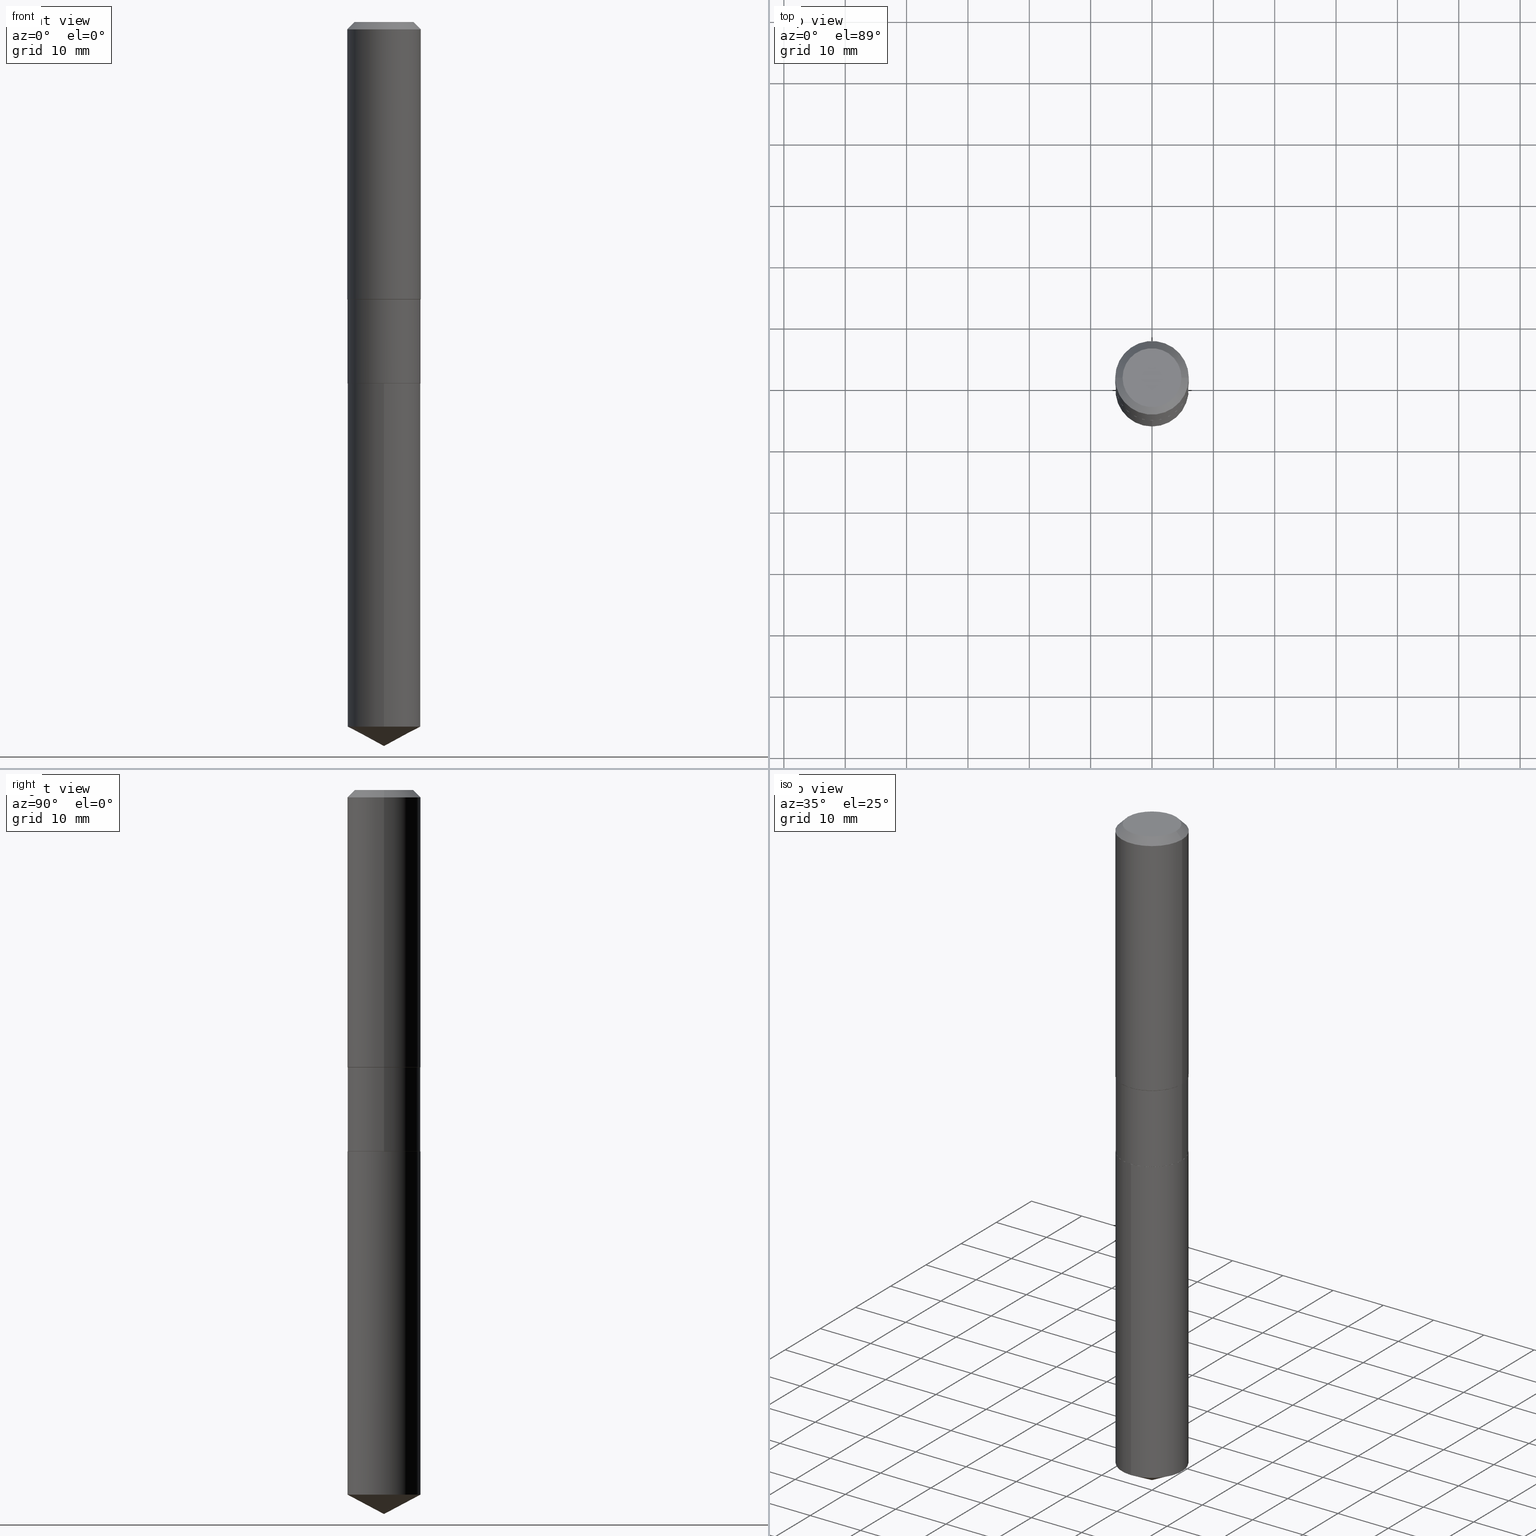
[diagram: canonical four-view strip — front | top / right | iso, engineering-drawing reading convention]
A machine part, canonical four-view strip (front | top / right | iso — engineering-drawing reading convention). The complete STEP part file that produces these views, byte-faithful:
ISO-10303-21;
HEADER;
FILE_DESCRIPTION (( 'STEP AP203' ),
    '1' );
FILE_NAME ('55186.STEP',
    '2024-04-24T17:01:12',
    ( '' ),
    ( '' ),
    'SwSTEP 2.0',
    'SolidWorks 2023',
    '' );
FILE_SCHEMA (( 'CONFIG_CONTROL_DESIGN' ));
ENDSEC;

DATA;
#1 = DIRECTION ( 'NONE',  ( -1.000000000000000000, 6.982962677686265922E-15, -4.876176775795935793E-29 ) ) ;
#2 = MANIFOLD_SOLID_BREP ( 'Body-Move/Copy2[2]', #116 ) ;
#3 = EDGE_LOOP ( 'NONE', ( #409, #185, #320, #382 ) ) ;
#4 = COORDINATED_UNIVERSAL_TIME_OFFSET ( 5, 0, .BEHIND. ) ;
#5 = EDGE_CURVE ( 'NONE', #34, #307, #400, .T. ) ;
#6 = SECURITY_CLASSIFICATION_LEVEL ( 'unclassified' ) ;
#7 = CARTESIAN_POINT ( 'NONE',  ( 0.2343999999999999695, -1.636806451649660713E-15, 1.142975836246567155E-29 ) ) ;
#8 = ADVANCED_FACE ( 'NONE', ( #80 ), #460, .T. ) ;
#9 = FACE_OUTER_BOUND ( 'NONE', #45, .T. ) ;
#10 = APPROVAL_ROLE ( '' ) ;
#11 = CC_DESIGN_DATE_AND_TIME_ASSIGNMENT ( #273, #308, ( #14 ) ) ;
#12 = CARTESIAN_POINT ( 'NONE',  ( 1.136096957072411400E-28, -1.622239395491006492E-14, -4.645999999999999908 ) ) ;
#13 = AXIS2_PLACEMENT_3D ( 'NONE', #397, #129, #200 ) ;
#14 = SECURITY_CLASSIFICATION ( '', '', #6 ) ;
#15 = DATE_AND_TIME ( #406, #454 ) ;
#16 = CARTESIAN_POINT ( 'NONE',  ( -0.2362000000000001043, 1.678301941865357380E-15, -1.161852468318209317E-29 ) ) ;
#17 = EDGE_CURVE ( 'NONE', #152, #365, #393, .T. ) ;
#18 = CALENDAR_DATE ( 2024, 24, 4 ) ;
#19 = CARTESIAN_POINT ( 'NONE',  ( -0.2343999999999999417, -5.492024572006774200E-15, -1.780699999999999950 ) ) ;
#20 = CARTESIAN_POINT ( 'NONE',  ( -9.427742298522546243E-47, 1.346031739168365344E-32, 3.855188123715862256E-18 ) ) ;
#21 = VERTEX_POINT ( 'NONE', #251 ) ;
#22 = DIRECTION ( 'NONE',  ( 1.000000000000000000, -6.982962677686266711E-15, 0.000000000000000000 ) ) ;
#23 = AXIS2_PLACEMENT_3D ( 'NONE', #101, #204, #469 ) ;
#24 = EDGE_LOOP ( 'NONE', ( #254, #190, #226, #363 ) ) ;
#25 = CLOSED_SHELL ( 'NONE', ( #416, #366, #234, #119, #183 ) ) ;
#26 = LOCAL_TIME ( 13, 1, 12.00000000000000000, #4 ) ;
#27 = EDGE_CURVE ( 'NONE', #102, #387, #35, .T. ) ;
#28 = DIRECTION ( 'NONE',  ( -2.445468806185136597E-29, 3.491481338843145583E-15, 1.000000000000000000 ) ) ;
#29 = ORIENTED_EDGE ( 'NONE', *, *, #90, .F. ) ;
#30 = DIRECTION ( 'NONE',  ( -6.982962677686264344E-15, -1.000000000000000000, 3.541896320645547064E-15 ) ) ;
#31 = EDGE_CURVE ( 'NONE', #113, #98, #339, .T. ) ;
#32 = VERTEX_POINT ( 'NONE', #141 ) ;
#33 = LINE ( 'NONE', #384, #233 ) ;
#34 = VERTEX_POINT ( 'NONE', #285 ) ;
#35 = CIRCLE ( 'NONE', #237, 0.2343999999999999972 ) ;
#36 = CONICAL_SURFACE ( 'NONE', #272, 0.2361999999999999933, 0.7853981633974452814 ) ;
#37 = DIRECTION ( 'NONE',  ( 1.000000000000000000, -6.982962677686266711E-15, 0.000000000000000000 ) ) ;
#38 = FACE_OUTER_BOUND ( 'NONE', #3, .T. ) ;
#39 = LINE ( 'NONE', #420, #304 ) ;
#40 = AXIS2_PLACEMENT_3D ( 'NONE', #309, #122, #268 ) ;
#41 = FACE_OUTER_BOUND ( 'NONE', #222, .T. ) ;
#42 = CIRCLE ( 'NONE', #248, 0.2343999999999999417 ) ;
#43 = EDGE_CURVE ( 'NONE', #21, #286, #264, .T. ) ;
#44 = CARTESIAN_POINT ( 'NONE',  ( -0.2338999999999999968, -6.437578950905456290E-15, -2.319800000000000306 ) ) ;
#45 = EDGE_LOOP ( 'NONE', ( #480, #294, #458, #462 ) ) ;
#46 = DIRECTION ( 'NONE',  ( -2.445468806185136597E-29, 3.491481338843145583E-15, 1.000000000000000000 ) ) ;
#47 = VECTOR ( 'NONE', #442, 39.37007874015748143 ) ;
#48 = DIRECTION ( 'NONE',  ( -0.7071067811865453523, 2.468850131082234184E-15, -0.7071067811865496822 ) ) ;
#49 = EDGE_CURVE ( 'NONE', #369, #259, #419, .T. ) ;
#50 = FACE_OUTER_BOUND ( 'NONE', #448, .T. ) ;
#51 = DIRECTION ( 'NONE',  ( 1.000000000000000000, 0.000000000000000000, 0.000000000000000000 ) ) ;
#52 = PRODUCT_DEFINITION ( 'UNKNOWN', '', #447, #196 ) ;
#53 = CARTESIAN_POINT ( 'NONE',  ( 4.354646303173872369E-29, -6.217280820077988934E-15, -1.780699999999999950 ) ) ;
#54 = COORDINATED_UNIVERSAL_TIME_OFFSET ( 5, 0, .BEHIND. ) ;
#55 = DIRECTION ( 'NONE',  ( -2.445322765975917676E-29, 3.491690476734839689E-15, 1.000000000000000000 ) ) ;
#56 = EDGE_CURVE ( 'NONE', #286, #32, #203, .T. ) ;
#57 = AXIS2_PLACEMENT_3D ( 'NONE', #156, #300, #295 ) ;
#58 = COORDINATED_UNIVERSAL_TIME_OFFSET ( 5, 0, .BEHIND. ) ;
#59 = DIRECTION ( 'NONE',  ( -2.445468806185136597E-29, 3.491481338843145583E-15, 1.000000000000000000 ) ) ;
#60 = CC_DESIGN_PERSON_AND_ORGANIZATION_ASSIGNMENT ( #399, #468, ( #447 ) ) ;
#61 = DATE_TIME_ROLE ( 'creation_date' ) ;
#62 = LINE ( 'NONE', #136, #425 ) ;
#63 = ORIENTED_EDGE ( 'NONE', *, *, #479, .F. ) ;
#64 = DIRECTION ( 'NONE',  ( -2.445468806185136597E-29, 3.491481338843145583E-15, 1.000000000000000000 ) ) ;
#65 = VECTOR ( 'NONE', #464, 39.37007874015748143 ) ;
#66 = ORIENTED_EDGE ( 'NONE', *, *, #56, .F. ) ;
#67 = CARTESIAN_POINT ( 'NONE',  ( 0.2338999999999999968, -9.732853380159146928E-15, -2.319800000000000306 ) ) ;
#68 = DIRECTION ( 'NONE',  ( -6.982962677686265922E-15, -1.000000000000000000, 3.496392483358698711E-15 ) ) ;
#69 = ORIENTED_EDGE ( 'NONE', *, *, #164, .F. ) ;
#70 = DIRECTION ( 'NONE',  ( -2.445468806185136597E-29, 3.491481338843145583E-15, 1.000000000000000000 ) ) ;
#71 = ORIENTED_EDGE ( 'NONE', *, *, #297, .F. ) ;
#72 = CYLINDRICAL_SURFACE ( 'NONE', #376, 0.2362000000000001043 ) ;
#73 = CIRCLE ( 'NONE', #484, 0.2362000000000002153 ) ;
#74 = AXIS2_PLACEMENT_3D ( 'NONE', #134, #199, #51 ) ;
#75 = DIRECTION ( 'NONE',  ( 1.000000000000000000, -6.982962677686266711E-15, 4.876176775795935793E-29 ) ) ;
#76 = ORIENTED_EDGE ( 'NONE', *, *, #5, .F. ) ;
#77 = DIRECTION ( 'NONE',  ( -2.445468806185136597E-29, 3.491481338843145583E-15, 1.000000000000000000 ) ) ;
#78 = EDGE_CURVE ( 'NONE', #369, #21, #235, .T. ) ;
#79 = DIRECTION ( 'NONE',  ( -2.445468806185136877E-29, 3.491481338843145188E-15, 1.000000000000000000 ) ) ;
#80 = FACE_OUTER_BOUND ( 'NONE', #143, .T. ) ;
#81 = CIRCLE ( 'NONE', #258, 0.1889600000000000168 ) ;
#82 = AXIS2_PLACEMENT_3D ( 'NONE', #452, #487, #148 ) ;
#83 = ORIENTED_EDGE ( 'NONE', *, *, #17, .F. ) ;
#84 = DIRECTION ( 'NONE',  ( -2.445322765975917676E-29, 3.491690476734839689E-15, 1.000000000000000000 ) ) ;
#85 =( GEOMETRIC_REPRESENTATION_CONTEXT ( 3 ) GLOBAL_UNCERTAINTY_ASSIGNED_CONTEXT ( ( #344 ) ) GLOBAL_UNIT_ASSIGNED_CONTEXT ( ( #92, #174, #470 ) ) REPRESENTATION_CONTEXT ( 'NONE', 'WORKASPACE' ) );
#86 = CARTESIAN_POINT ( 'NONE',  ( -0.1889600000000000168, 1.401969416799070942E-15, 3.855188123706346622E-18 ) ) ;
#87 = VECTOR ( 'NONE', #79, 39.37007874015748143 ) ;
#88 = DATE_AND_TIME ( #163, #216 ) ;
#89 = MECHANICAL_CONTEXT ( 'NONE', #465, 'mechanical' ) ;
#90 = EDGE_CURVE ( 'NONE', #259, #369, #475, .T. ) ;
#91 = LINE ( 'NONE', #476, #438 ) ;
#92 =( CONVERSION_BASED_UNIT ( 'INCH', #138 ) LENGTH_UNIT ( ) NAMED_UNIT ( #429 ) );
#93 = ADVANCED_FACE ( 'NONE', ( #9 ), #130, .T. ) ;
#94 = CARTESIAN_POINT ( 'NONE',  ( 3.781018395113229375E-29, -1.080896165726276243E-14, -2.319800000000000306 ) ) ;
#95 = AXIS2_PLACEMENT_3D ( 'NONE', #328, #207, #364 ) ;
#96 = DIRECTION ( 'NONE',  ( -2.445468806185136597E-29, 3.491481338843145583E-15, 1.000000000000000000 ) ) ;
#97 = VECTOR ( 'NONE', #221, 39.37007874015748143 ) ;
#98 = VERTEX_POINT ( 'NONE', #86 ) ;
#99 = APPROVAL_DATE_TIME ( #313, #301 ) ;
#100 = CARTESIAN_POINT ( 'NONE',  ( 1.105654119864874407E-28, -1.578673001733748720E-14, -4.521367309218550901 ) ) ;
#101 = CARTESIAN_POINT ( 'NONE',  ( 5.671775802185187790E-29, -8.097792669178907520E-15, -2.319300000000000139 ) ) ;
#102 = VERTEX_POINT ( 'NONE', #274 ) ;
#103 = FACE_OUTER_BOUND ( 'NONE', #177, .T. ) ;
#104 = EDGE_CURVE ( 'NONE', #324, #32, #232, .T. ) ;
#105 = ORIENTED_EDGE ( 'NONE', *, *, #210, .T. ) ;
#106 = DIRECTION ( 'NONE',  ( -2.438088387897960049E-29, 3.491481338843145188E-15, 1.000000000000000000 ) ) ;
#107 = AXIS2_PLACEMENT_3D ( 'NONE', #278, #410, #30 ) ;
#108 = ORIENTED_EDGE ( 'NONE', *, *, #43, .F. ) ;
#109 = CC_DESIGN_PERSON_AND_ORGANIZATION_ASSIGNMENT ( #208, #360, ( #14 ) ) ;
#110 = AXIS2_PLACEMENT_3D ( 'NONE', #444, #55, #325 ) ;
#111 = ORIENTED_EDGE ( 'NONE', *, *, #198, .T. ) ;
#112 = FACE_OUTER_BOUND ( 'NONE', #388, .T. ) ;
#113 = VERTEX_POINT ( 'NONE', #205 ) ;
#114 = DIRECTION ( 'NONE',  ( -2.445468806185136597E-29, 3.491481338843145583E-15, 1.000000000000000000 ) ) ;
#115 = ORIENTED_EDGE ( 'NONE', *, *, #78, .F. ) ;
#116 = CLOSED_SHELL ( 'NONE', ( #338, #326, #201, #241, #8, #408, #93, #380, #269, #396, #306, #455 ) ) ;
#117 = APPROVAL_PERSON_ORGANIZATION ( #317, #301, #10 ) ;
#118 = PLANE ( 'NONE',  #311 ) ;
#119 = ADVANCED_FACE ( 'NONE', ( #50 ), #428, .T. ) ;
#120 = ORIENTED_EDGE ( 'NONE', *, *, #31, .F. ) ;
#121 = DIRECTION ( 'NONE',  ( -2.445322765975917676E-29, 3.491690476734839689E-15, 1.000000000000000000 ) ) ;
#122 = DIRECTION ( 'NONE',  ( -2.445322765975917676E-29, 3.491690476734839689E-15, 1.000000000000000000 ) ) ;
#123 = APPROVAL_STATUS ( 'not_yet_approved' ) ;
#124 = ORIENTED_EDGE ( 'NONE', *, *, #133, .F. ) ;
#125 = PERSON_AND_ORGANIZATION ( #296, #170 ) ;
#126 = AXIS2_PLACEMENT_3D ( 'NONE', #188, #77, #37 ) ;
#127 = DIRECTION ( 'NONE',  ( -2.445468806185136597E-29, 3.491481338843145583E-15, 1.000000000000000000 ) ) ;
#128 = CARTESIAN_POINT ( 'NONE',  ( 5.672998536588279470E-29, -8.099538409848329813E-15, -2.319799999999999862 ) ) ;
#129 = DIRECTION ( 'NONE',  ( -2.445468806185136597E-29, 3.491481338843145583E-15, 1.000000000000000000 ) ) ;
#130 = CONICAL_SURFACE ( 'NONE', #13, 0.2343999999999999417, 0.7853981633974578269 ) ;
#131 = CC_DESIGN_APPROVAL ( #229, ( #14 ) ) ;
#132 = DIRECTION ( 'NONE',  ( 1.000000000000000000, -6.982962677686263555E-15, 0.000000000000000000 ) ) ;
#133 = EDGE_CURVE ( 'NONE', #159, #307, #351, .T. ) ;
#134 = CARTESIAN_POINT ( 'NONE',  ( 0.000000000000000000, 0.000000000000000000, 0.000000000000000000 ) ) ;
#135 = APPLICATION_PROTOCOL_DEFINITION ( 'international standard', 'config_control_design', 1994, #336 ) ;
#136 = CARTESIAN_POINT ( 'NONE',  ( -1.636806451649603915E-15, -0.2344000000000081019, -2.319799999999998974 ) ) ;
#137 = ORIENTED_EDGE ( 'NONE', *, *, #17, .T. ) ;
#138 = LENGTH_MEASURE_WITH_UNIT ( LENGTH_MEASURE( 0.02539999999999999897 ), #260 );
#139 = DIRECTION ( 'NONE',  ( -1.000000000000000000, 6.982962677686266711E-15, 0.000000000000000000 ) ) ;
#140 = AXIS2_PLACEMENT_3D ( 'NONE', #213, #59, #22 ) ;
#141 = CARTESIAN_POINT ( 'NONE',  ( 0.2343999999999999417, -7.854087271727649845E-15, -1.780699999999999950 ) ) ;
#142 = CC_DESIGN_SECURITY_CLASSIFICATION ( #14, ( #447 ) ) ;
#143 = EDGE_LOOP ( 'NONE', ( #111, #379, #303, #66 ) ) ;
#144 = CARTESIAN_POINT ( 'NONE',  ( 0.2343999999999999972, -9.734599120828569220E-15, -2.319300000000000139 ) ) ;
#145 = ORIENTED_EDGE ( 'NONE', *, *, #133, .T. ) ;
#146 = PLANE ( 'NONE',  #340 ) ;
#147 = ORIENTED_EDGE ( 'NONE', *, *, #49, .T. ) ;
#148 = DIRECTION ( 'NONE',  ( -6.982962677686265922E-15, -1.000000000000000000, 3.496392483358698711E-15 ) ) ;
#149 = AXIS2_PLACEMENT_3D ( 'NONE', #100, #255, #209 ) ;
#150 = ORIENTED_EDGE ( 'NONE', *, *, #440, .T. ) ;
#151 = CARTESIAN_POINT ( 'NONE',  ( 0.000000000000000000, 0.000000000000000000, 0.000000000000000000 ) ) ;
#152 = VERTEX_POINT ( 'NONE', #466 ) ;
#153 = APPROVAL ( #389, 'UNSPECIFIED' ) ;
#154 = CARTESIAN_POINT ( 'NONE',  ( 0.2338999999999999968, -9.732853380159146928E-15, -2.319800000000000306 ) ) ;
#155 = ORIENTED_EDGE ( 'NONE', *, *, #280, .F. ) ;
#156 = CARTESIAN_POINT ( 'NONE',  ( 0.000000000000000000, 0.000000000000000000, 0.000000000000000000 ) ) ;
#157 = AXIS2_PLACEMENT_3D ( 'NONE', #245, #64, #481 ) ;
#158 = DIRECTION ( 'NONE',  ( -0.7071067811865541231, 7.493145998870377826E-15, 0.7071067811865406894 ) ) ;
#159 = VERTEX_POINT ( 'NONE', #277 ) ;
#160 = CALENDAR_DATE ( 2024, 24, 4 ) ;
#161 = MANIFOLD_SOLID_BREP ( 'Body-Move/Copy2[1]', #25 ) ;
#162 = EDGE_LOOP ( 'NONE', ( #187, #373, #83, #63 ) ) ;
#163 = CALENDAR_DATE ( 2024, 24, 4 ) ;
#164 = EDGE_CURVE ( 'NONE', #98, #113, #81, .T. ) ;
#165 = AXIS2_PLACEMENT_3D ( 'NONE', #407, #179, #215 ) ;
#166 = AXIS2_PLACEMENT_3D ( 'NONE', #197, #70, #342 ) ;
#167 = DIRECTION ( 'NONE',  ( -2.445468806185136597E-29, 3.491481338843145583E-15, 1.000000000000000000 ) ) ;
#168 = EDGE_CURVE ( 'NONE', #98, #365, #275, .T. ) ;
#169 = SHAPE_DEFINITION_REPRESENTATION ( #472, #404 ) ;
#170 = ORGANIZATION ( 'UNSPECIFIED', 'UNSPECIFIED', '' ) ;
#171 = CARTESIAN_POINT ( 'NONE',  ( 5.672998536588280591E-29, -8.099538409848329813E-15, -2.319800000000000306 ) ) ;
#172 = DIRECTION ( 'NONE',  ( 1.000000000000000000, -6.982962677686265922E-15, 4.876176775795935793E-29 ) ) ;
#173 = DIRECTION ( 'NONE',  ( -2.445468806185136597E-29, 3.491481338843145583E-15, 1.000000000000000000 ) ) ;
#174 =( NAMED_UNIT ( * ) PLANE_ANGLE_UNIT ( ) SI_UNIT ( $, .RADIAN. ) );
#175 = FACE_OUTER_BOUND ( 'NONE', #405, .T. ) ;
#176 = DIRECTION ( 'NONE',  ( -2.445468806185136597E-29, 3.491481338843145583E-15, 1.000000000000000000 ) ) ;
#177 = EDGE_LOOP ( 'NONE', ( #155, #145, #76 ) ) ;
#178 = EDGE_CURVE ( 'NONE', #307, #34, #330, .T. ) ;
#179 = DIRECTION ( 'NONE',  ( 2.445468806185136597E-29, -3.491481338843145583E-15, -1.000000000000000000 ) ) ;
#180 = AXIS2_PLACEMENT_3D ( 'NONE', #171, #167, #132 ) ;
#181 = CC_DESIGN_APPROVAL ( #301, ( #52 ) ) ;
#182 = ORIENTED_EDGE ( 'NONE', *, *, #421, .T. ) ;
#183 = ADVANCED_FACE ( 'NONE', ( #281 ), #290, .F. ) ;
#184 = CARTESIAN_POINT ( 'NONE',  ( 0.2362000000000002153, -7.860371938137568836E-15, -1.778899999999999704 ) ) ;
#185 = ORIENTED_EDGE ( 'NONE', *, *, #288, .T. ) ;
#186 = FACE_OUTER_BOUND ( 'NONE', #383, .T. ) ;
#187 = ORIENTED_EDGE ( 'NONE', *, *, #250, .T. ) ;
#188 = CARTESIAN_POINT ( 'NONE',  ( 1.155239464041865331E-30, -1.649375784469511612E-16, -0.04724000000000027483 ) ) ;
#189 = CC_DESIGN_PERSON_AND_ORGANIZATION_ASSIGNMENT ( #125, #315, ( #52 ) ) ;
#190 = ORIENTED_EDGE ( 'NONE', *, *, #353, .T. ) ;
#191 = AXIS2_PLACEMENT_3D ( 'NONE', #194, #231, #305 ) ;
#192 = FACE_OUTER_BOUND ( 'NONE', #217, .T. ) ;
#193 = DIRECTION ( 'NONE',  ( -2.445322765975917676E-29, 3.491690476734840083E-15, 1.000000000000000000 ) ) ;
#194 = CARTESIAN_POINT ( 'NONE',  ( 5.672998536588280591E-29, -8.099538409848329813E-15, -2.319800000000000306 ) ) ;
#195 = ORIENTED_EDGE ( 'NONE', *, *, #349, .F. ) ;
#196 = DESIGN_CONTEXT ( 'detailed design', #336, 'design' ) ;
#197 = CARTESIAN_POINT ( 'NONE',  ( 5.672998536588280591E-29, -8.099538409848329813E-15, -2.319800000000000306 ) ) ;
#198 = EDGE_CURVE ( 'NONE', #286, #21, #321, .T. ) ;
#199 = DIRECTION ( 'NONE',  ( 0.000000000000000000, 0.000000000000000000, 1.000000000000000000 ) ) ;
#200 = DIRECTION ( 'NONE',  ( 1.000000000000000000, -6.982962677686267499E-15, 0.000000000000000000 ) ) ;
#201 = ADVANCED_FACE ( 'NONE', ( #358 ), #257, .T. ) ;
#202 = DIRECTION ( 'NONE',  ( 1.000000000000000000, -6.982962677686267499E-15, 0.000000000000000000 ) ) ;
#203 = LINE ( 'NONE', #7, #314 ) ;
#204 = DIRECTION ( 'NONE',  ( -2.445468806185136597E-29, 3.491481338843145583E-15, 1.000000000000000000 ) ) ;
#205 = CARTESIAN_POINT ( 'NONE',  ( 0.1889600000000000168, -1.540873453589747738E-15, 3.855188123725863225E-18 ) ) ;
#206 = PERSON_AND_ORGANIZATION ( #296, #170 ) ;
#207 = DIRECTION ( 'NONE',  ( 2.445322765975917116E-29, -3.491690476734840083E-15, -1.000000000000000000 ) ) ;
#208 = PERSON_AND_ORGANIZATION ( #296, #170 ) ;
#209 = DIRECTION ( 'NONE',  ( -6.982962677686265922E-15, -1.000000000000000000, 2.330928322239132474E-15 ) ) ;
#210 = EDGE_CURVE ( 'NONE', #307, #102, #62, .T. ) ;
#211 = ORIENTED_EDGE ( 'NONE', *, *, #256, .F. ) ;
#212 = APPROVAL_ROLE ( '' ) ;
#213 = CARTESIAN_POINT ( 'NONE',  ( 4.350244459322738732E-29, -6.210996153668070733E-15, -1.778899999999999704 ) ) ;
#214 = ORIENTED_EDGE ( 'NONE', *, *, #164, .T. ) ;
#215 = DIRECTION ( 'NONE',  ( -1.000000000000000000, 6.982962677686266711E-15, 0.000000000000000000 ) ) ;
#216 = LOCAL_TIME ( 13, 1, 12.00000000000000000, #424 ) ;
#217 = EDGE_LOOP ( 'NONE', ( #214, #436 ) ) ;
#218 = EDGE_CURVE ( 'NONE', #490, #365, #370, .T. ) ;
#219 = DIRECTION ( 'NONE',  ( -2.445468806185136597E-29, 3.491481338843145583E-15, 1.000000000000000000 ) ) ;
#220 = ORIENTED_EDGE ( 'NONE', *, *, #104, .F. ) ;
#221 = DIRECTION ( 'NONE',  ( 0.7071067811864267805, -2.468850131080992517E-15, 0.7071067811866682540 ) ) ;
#222 = EDGE_LOOP ( 'NONE', ( #195, #261, #474, #220 ) ) ;
#223 = CARTESIAN_POINT ( 'NONE',  ( -4.713871149261273121E-47, 6.730158695841826722E-33, 1.927594061857931128E-18 ) ) ;
#224 = LOCAL_TIME ( 13, 1, 12.00000000000000000, #279 ) ;
#225 = CYLINDRICAL_SURFACE ( 'NONE', #82, 0.2343999999999999972 ) ;
#226 = ORIENTED_EDGE ( 'NONE', *, *, #27, .F. ) ;
#227 = LINE ( 'NONE', #449, #485 ) ;
#228 = EDGE_LOOP ( 'NONE', ( #115, #147, #150, #108 ) ) ;
#229 = APPROVAL ( #270, 'UNSPECIFIED' ) ;
#230 = ORIENTED_EDGE ( 'NONE', *, *, #440, .F. ) ;
#231 = DIRECTION ( 'NONE',  ( -2.445468806185136597E-29, 3.491481338843145583E-15, 1.000000000000000000 ) ) ;
#232 = CIRCLE ( 'NONE', #356, 0.2343999999999999417 ) ;
#233 = VECTOR ( 'NONE', #381, 39.37007874015748854 ) ;
#234 = ADVANCED_FACE ( 'NONE', ( #103 ), #467, .T. ) ;
#235 = LINE ( 'NONE', #44, #65 ) ;
#236 = CC_DESIGN_PERSON_AND_ORGANIZATION_ASSIGNMENT ( #427, #395, ( #447 ) ) ;
#237 = AXIS2_PLACEMENT_3D ( 'NONE', #403, #362, #68 ) ;
#238 = AXIS2_PLACEMENT_3D ( 'NONE', #354, #96, #482 ) ;
#239 = VECTOR ( 'NONE', #486, 39.37007874015748143 ) ;
#240 = DIRECTION ( 'NONE',  ( -2.445468806185136877E-29, 3.491481338843145188E-15, 1.000000000000000000 ) ) ;
#241 = ADVANCED_FACE ( 'NONE', ( #186 ), #375, .T. ) ;
#242 = APPROVAL_DATE_TIME ( #88, #229 ) ;
#243 = CARTESIAN_POINT ( 'NONE',  ( -9.427742298522546243E-47, 1.346031739168365344E-32, 3.855188123715862256E-18 ) ) ;
#244 = APPROVAL_DATE_TIME ( #345, #153 ) ;
#245 = CARTESIAN_POINT ( 'NONE',  ( 0.000000000000000000, 0.000000000000000000, 0.000000000000000000 ) ) ;
#246 = CALENDAR_DATE ( 2024, 24, 4 ) ;
#247 = CONICAL_SURFACE ( 'NONE', #165, 0.2361999999999999933, 0.7853981633974452814 ) ;
#248 = AXIS2_PLACEMENT_3D ( 'NONE', #284, #372, #333 ) ;
#249 = DIRECTION ( 'NONE',  ( -2.445322765975917676E-29, 3.491690476734840083E-15, 1.000000000000000000 ) ) ;
#250 = EDGE_CURVE ( 'NONE', #291, #490, #430, .T. ) ;
#251 = CARTESIAN_POINT ( 'NONE',  ( -0.2344000000000000250, -5.492024572006774200E-15, -2.319300000000000139 ) ) ;
#252 = ORIENTED_EDGE ( 'NONE', *, *, #78, .T. ) ;
#253 = DIRECTION ( 'NONE',  ( 1.000000000000000000, -6.982962677686267499E-15, 0.000000000000000000 ) ) ;
#254 = ORIENTED_EDGE ( 'NONE', *, *, #178, .T. ) ;
#255 = DIRECTION ( 'NONE',  ( -2.445322765975917676E-29, 3.491690476734839689E-15, 1.000000000000000000 ) ) ;
#256 = EDGE_CURVE ( 'NONE', #113, #152, #434, .T. ) ;
#257 = CYLINDRICAL_SURFACE ( 'NONE', #157, 0.2362000000000001043 ) ;
#258 = AXIS2_PLACEMENT_3D ( 'NONE', #243, #46, #346 ) ;
#259 = VERTEX_POINT ( 'NONE', #67 ) ;
#260 =( LENGTH_UNIT ( ) NAMED_UNIT ( * ) SI_UNIT ( $, .METRE. ) );
#261 = ORIENTED_EDGE ( 'NONE', *, *, #43, .T. ) ;
#262 = CARTESIAN_POINT ( 'NONE',  ( -0.2343999999999999695, 1.665512172621674619E-15, -1.152998385155749684E-29 ) ) ;
#263 = CARTESIAN_POINT ( 'NONE',  ( -0.2362000000000002153, -4.532694211802711972E-15, -1.778899999999999704 ) ) ;
#264 = CIRCLE ( 'NONE', #23, 0.2343999999999999972 ) ;
#265 = CONICAL_SURFACE ( 'NONE', #431, 74.04434902938382379, 1.082104136236488046 ) ;
#266 = CARTESIAN_POINT ( 'NONE',  ( -8.491124148677011086E-28, 1.212462202084797433E-13, 34.72407874015748064 ) ) ;
#267 = CARTESIAN_POINT ( 'NONE',  ( 1.665512172621785257E-15, 0.2343999999999918649, -2.319800000000000750 ) ) ;
#268 = DIRECTION ( 'NONE',  ( -6.982962677686265922E-15, -1.000000000000000000, 2.330928322239132474E-15 ) ) ;
#269 = ADVANCED_FACE ( 'NONE', ( #316 ), #247, .T. ) ;
#270 = APPROVAL_STATUS ( 'not_yet_approved' ) ;
#271 = EDGE_LOOP ( 'NONE', ( #371, #299 ) ) ;
#272 = AXIS2_PLACEMENT_3D ( 'NONE', #318, #473, #139 ) ;
#273 = DATE_AND_TIME ( #160, #26 ) ;
#274 = CARTESIAN_POINT ( 'NONE',  ( -1.636806451649603915E-15, -0.2344000000000081019, -2.319799999999998974 ) ) ;
#275 = LINE ( 'NONE', #392, #283 ) ;
#276 = AXIS2_PLACEMENT_3D ( 'NONE', #414, #173, #359 ) ;
#277 = CARTESIAN_POINT ( 'NONE',  ( 1.136096957072411400E-28, -1.622239395491006492E-14, -4.645999999999999908 ) ) ;
#278 = CARTESIAN_POINT ( 'NONE',  ( -8.491124148677011086E-28, 1.212462202084797433E-13, 34.72407874015748064 ) ) ;
#279 = COORDINATED_UNIVERSAL_TIME_OFFSET ( 5, 0, .BEHIND. ) ;
#280 = EDGE_CURVE ( 'NONE', #159, #34, #91, .T. ) ;
#281 = FACE_OUTER_BOUND ( 'NONE', #271, .T. ) ;
#282 = ORIENTED_EDGE ( 'NONE', *, *, #353, .F. ) ;
#283 = VECTOR ( 'NONE', #48, 39.37007874015748143 ) ;
#284 = CARTESIAN_POINT ( 'NONE',  ( 4.354646303173872369E-29, -6.217280820077988934E-15, -1.780699999999999950 ) ) ;
#285 = CARTESIAN_POINT ( 'NONE',  ( 1.665512172621785454E-15, 0.2343999999999842321, -4.521367309218551789 ) ) ;
#286 = VERTEX_POINT ( 'NONE', #144 ) ;
#287 = CARTESIAN_POINT ( 'NONE',  ( 5.671775802185187790E-29, -8.097792669178907520E-15, -2.319300000000000139 ) ) ;
#288 = EDGE_CURVE ( 'NONE', #490, #291, #73, .T. ) ;
#289 = ORIENTED_EDGE ( 'NONE', *, *, #280, .T. ) ;
#290 = PLANE ( 'NONE',  #95 ) ;
#291 = VERTEX_POINT ( 'NONE', #184 ) ;
#292 = CARTESIAN_POINT ( 'NONE',  ( 0.2362000000000001043, -1.649375784469496920E-15, 1.151752954443000508E-29 ) ) ;
#293 = AXIS2_PLACEMENT_3D ( 'NONE', #413, #402, #253 ) ;
#294 = ORIENTED_EDGE ( 'NONE', *, *, #104, .T. ) ;
#295 = DIRECTION ( 'NONE',  ( 1.000000000000000000, -6.982962677686266711E-15, 4.876176775795935793E-29 ) ) ;
#296 = PERSON ( 'UNSPECIFIED', 'UNSPECIFIED', 'UNSPECIFIED', ('UNSPECIFIED'), ('UNSPECIFIED'), ('UNSPECIFIED') ) ;
#297 = EDGE_CURVE ( 'NONE', #387, #102, #347, .T. ) ;
#298 = DIRECTION ( 'NONE',  ( 2.438088387897960049E-29, -3.491481338843145188E-15, -1.000000000000000000 ) ) ;
#299 = ORIENTED_EDGE ( 'NONE', *, *, #297, .T. ) ;
#300 = DIRECTION ( 'NONE',  ( -2.445468806185136597E-29, 3.491481338843145583E-15, 1.000000000000000000 ) ) ;
#301 = APPROVAL ( #123, 'UNSPECIFIED' ) ;
#302 = AXIS2_PLACEMENT_3D ( 'NONE', #287, #219, #471 ) ;
#303 = ORIENTED_EDGE ( 'NONE', *, *, #332, .F. ) ;
#304 = VECTOR ( 'NONE', #193, 39.37007874015748143 ) ;
#305 = DIRECTION ( 'NONE',  ( 1.000000000000000000, -6.982962677686263555E-15, 0.000000000000000000 ) ) ;
#306 = ADVANCED_FACE ( 'NONE', ( #478 ), #146, .F. ) ;
#307 = VERTEX_POINT ( 'NONE', #435 ) ;
#308 = DATE_TIME_ROLE ( 'classification_date' ) ;
#309 = CARTESIAN_POINT ( 'NONE',  ( 1.105654119864874407E-28, -1.578673001733748720E-14, -4.521367309218550901 ) ) ;
#310 = AXIS2_PLACEMENT_3D ( 'NONE', #426, #127, #312 ) ;
#311 = AXIS2_PLACEMENT_3D ( 'NONE', #223, #298, #1 ) ;
#312 = DIRECTION ( 'NONE',  ( 1.000000000000000000, -6.982962677686263555E-15, 0.000000000000000000 ) ) ;
#313 = DATE_AND_TIME ( #18, #386 ) ;
#314 = VECTOR ( 'NONE', #240, 39.37007874015748143 ) ;
#315 = PERSON_AND_ORGANIZATION_ROLE ( 'creator' ) ;
#316 = FACE_OUTER_BOUND ( 'NONE', #343, .T. ) ;
#317 = PERSON_AND_ORGANIZATION ( #296, #170 ) ;
#318 = CARTESIAN_POINT ( 'NONE',  ( 1.155239464041865331E-30, -1.649375784469511612E-16, -0.04724000000000027483 ) ) ;
#319 = DIRECTION ( 'NONE',  ( 1.000000000000000000, -6.982962677686266711E-15, 4.876185090822587894E-29 ) ) ;
#320 = ORIENTED_EDGE ( 'NONE', *, *, #479, .T. ) ;
#321 = CIRCLE ( 'NONE', #302, 0.2343999999999999972 ) ;
#322 = CONICAL_SURFACE ( 'NONE', #166, 0.2338999999999999968, 0.7853981633972775267 ) ;
#323 = CARTESIAN_POINT ( 'NONE',  ( 0.2361999999999999933, -1.785387205520586782E-15, -0.04724000000000027483 ) ) ;
#324 = VERTEX_POINT ( 'NONE', #19 ) ;
#325 = DIRECTION ( 'NONE',  ( -6.982962677686265922E-15, -1.000000000000000000, 3.496392483358698711E-15 ) ) ;
#326 = ADVANCED_FACE ( 'NONE', ( #175 ), #36, .T. ) ;
#327 = ORIENTED_EDGE ( 'NONE', *, *, #198, .F. ) ;
#328 = CARTESIAN_POINT ( 'NONE',  ( 5.672998536588279470E-29, -8.099538409848329813E-15, -2.319799999999999862 ) ) ;
#329 = CARTESIAN_POINT ( 'NONE',  ( -0.2338999999999999968, -6.434929723731344300E-15, -2.319800000000000306 ) ) ;
#330 = CIRCLE ( 'NONE', #149, 0.2343999999999999972 ) ;
#331 = APPROVAL_PERSON_ORGANIZATION ( #355, #153, #212 ) ;
#332 = EDGE_CURVE ( 'NONE', #32, #324, #42, .T. ) ;
#333 = DIRECTION ( 'NONE',  ( 1.000000000000000000, -6.982962677686267499E-15, 0.000000000000000000 ) ) ;
#334 = CYLINDRICAL_SURFACE ( 'NONE', #57, 0.2343999999999999695 ) ;
#335 = ORIENTED_EDGE ( 'NONE', *, *, #332, .T. ) ;
#336 = APPLICATION_CONTEXT ( 'configuration controlled 3d designs of mechanical parts and assemblies' ) ;
#337 = LINE ( 'NONE', #154, #97 ) ;
#338 = ADVANCED_FACE ( 'NONE', ( #422 ), #348, .T. ) ;
#339 = CIRCLE ( 'NONE', #385, 0.1889600000000000168 ) ;
#340 = AXIS2_PLACEMENT_3D ( 'NONE', #94, #106, #172 ) ;
#341 = ORIENTED_EDGE ( 'NONE', *, *, #90, .T. ) ;
#342 = DIRECTION ( 'NONE',  ( 1.000000000000000000, -6.982962677686263555E-15, 0.000000000000000000 ) ) ;
#343 = EDGE_LOOP ( 'NONE', ( #211, #69, #450, #182 ) ) ;
#344 = UNCERTAINTY_MEASURE_WITH_UNIT (LENGTH_MEASURE( 1.000000000000000082E-05 ), #92, 'distance_accuracy_value', 'NONE');
#345 = DATE_AND_TIME ( #246, #224 ) ;
#346 = DIRECTION ( 'NONE',  ( 1.000000000000000000, -6.982962677686266711E-15, 4.876185090822587894E-29 ) ) ;
#347 = CIRCLE ( 'NONE', #110, 0.2343999999999999972 ) ;
#348 = CONICAL_SURFACE ( 'NONE', #191, 0.2338999999999999968, 0.7853981633972775267 ) ;
#349 = EDGE_CURVE ( 'NONE', #21, #324, #378, .T. ) ;
#350 = PRODUCT_RELATED_PRODUCT_CATEGORY ( 'detail', '', ( #463 ) ) ;
#351 = LINE ( 'NONE', #12, #412 ) ;
#352 = APPLICATION_PROTOCOL_DEFINITION ( 'international standard', 'config_control_design', 1994, #465 ) ;
#353 = EDGE_CURVE ( 'NONE', #34, #387, #39, .T. ) ;
#354 = CARTESIAN_POINT ( 'NONE',  ( 0.000000000000000000, 0.000000000000000000, 0.000000000000000000 ) ) ;
#355 = PERSON_AND_ORGANIZATION ( #296, #170 ) ;
#356 = AXIS2_PLACEMENT_3D ( 'NONE', #53, #394, #202 ) ;
#357 = CIRCLE ( 'NONE', #126, 0.2361999999999999933 ) ;
#358 = FACE_OUTER_BOUND ( 'NONE', #162, .T. ) ;
#359 = DIRECTION ( 'NONE',  ( 1.000000000000000000, -6.982962677686266711E-15, 0.000000000000000000 ) ) ;
#360 = PERSON_AND_ORGANIZATION_ROLE ( 'classification_officer' ) ;
#361 = DIRECTION ( 'NONE',  ( 1.000000000000000000, -6.982962677686266711E-15, 0.000000000000000000 ) ) ;
#362 = DIRECTION ( 'NONE',  ( -2.445322765975917676E-29, 3.491690476734839689E-15, 1.000000000000000000 ) ) ;
#363 = ORIENTED_EDGE ( 'NONE', *, *, #210, .F. ) ;
#364 = DIRECTION ( 'NONE',  ( 6.982962677686265922E-15, 1.000000000000000000, -3.491690476734840083E-15 ) ) ;
#365 = VERTEX_POINT ( 'NONE', #489 ) ;
#366 = ADVANCED_FACE ( 'NONE', ( #112 ), #265, .T. ) ;
#367 = APPROVAL_PERSON_ORGANIZATION ( #459, #229, #433 ) ;
#368 = CARTESIAN_POINT ( 'NONE',  ( 4.350244459322738732E-29, -6.210996153668070733E-15, -1.778899999999999704 ) ) ;
#369 = VERTEX_POINT ( 'NONE', #329 ) ;
#370 = LINE ( 'NONE', #16, #47 ) ;
#371 = ORIENTED_EDGE ( 'NONE', *, *, #27, .T. ) ;
#372 = DIRECTION ( 'NONE',  ( -2.445468806185136597E-29, 3.491481338843145583E-15, 1.000000000000000000 ) ) ;
#373 = ORIENTED_EDGE ( 'NONE', *, *, #218, .T. ) ;
#374 = FACE_OUTER_BOUND ( 'NONE', #24, .T. ) ;
#375 = CONICAL_SURFACE ( 'NONE', #293, 0.2343999999999999417, 0.7853981633974578269 ) ;
#376 = AXIS2_PLACEMENT_3D ( 'NONE', #151, #114, #75 ) ;
#377 = CC_DESIGN_PERSON_AND_ORGANIZATION_ASSIGNMENT ( #206, #437, ( #463 ) ) ;
#378 = LINE ( 'NONE', #262, #87 ) ;
#379 = ORIENTED_EDGE ( 'NONE', *, *, #349, .T. ) ;
#380 = ADVANCED_FACE ( 'NONE', ( #38 ), #72, .T. ) ;
#381 = DIRECTION ( 'NONE',  ( 0.7071067811865541231, -2.468850131082326875E-15, 0.7071067811865406894 ) ) ;
#382 = ORIENTED_EDGE ( 'NONE', *, *, #421, .F. ) ;
#383 = EDGE_LOOP ( 'NONE', ( #335, #443, #417, #445 ) ) ;
#384 = CARTESIAN_POINT ( 'NONE',  ( 0.2343999999999999417, -7.854087271727649845E-15, -1.780699999999999950 ) ) ;
#385 = AXIS2_PLACEMENT_3D ( 'NONE', #20, #176, #319 ) ;
#386 = LOCAL_TIME ( 13, 1, 12.00000000000000000, #54 ) ;
#387 = VERTEX_POINT ( 'NONE', #267 ) ;
#388 = EDGE_LOOP ( 'NONE', ( #124, #289, #441 ) ) ;
#389 = APPROVAL_STATUS ( 'not_yet_approved' ) ;
#390 = DIRECTION ( 'NONE',  ( -6.982962677686265922E-15, -1.000000000000000000, 3.496392483358698711E-15 ) ) ;
#391 = EDGE_CURVE ( 'NONE', #32, #291, #33, .T. ) ;
#392 = CARTESIAN_POINT ( 'NONE',  ( -0.2361999999999999933, 1.484438206022545019E-15, -0.04724000000000027483 ) ) ;
#393 = CIRCLE ( 'NONE', #276, 0.2361999999999999933 ) ;
#394 = DIRECTION ( 'NONE',  ( -2.445468806185136597E-29, 3.491481338843145583E-15, 1.000000000000000000 ) ) ;
#395 = PERSON_AND_ORGANIZATION_ROLE ( 'design_supplier' ) ;
#396 = ADVANCED_FACE ( 'NONE', ( #192 ), #118, .F. ) ;
#397 = CARTESIAN_POINT ( 'NONE',  ( 4.354646303173872369E-29, -6.217280820077988934E-15, -1.780699999999999950 ) ) ;
#398 = DIRECTION ( 'NONE',  ( 6.273719981627770021E-15, 0.8829475928589302081, 0.4694715627858844220 ) ) ;
#399 = PERSON_AND_ORGANIZATION ( #296, #170 ) ;
#400 = CIRCLE ( 'NONE', #40, 0.2343999999999999972 ) ;
#401 = CC_DESIGN_APPROVAL ( #153, ( #447 ) ) ;
#402 = DIRECTION ( 'NONE',  ( -2.445468806185136597E-29, 3.491481338843145583E-15, 1.000000000000000000 ) ) ;
#403 = CARTESIAN_POINT ( 'NONE',  ( 5.672998536588279470E-29, -8.099538409848329813E-15, -2.319799999999999862 ) ) ;
#404 = ADVANCED_BREP_SHAPE_REPRESENTATION ( '55186', ( #161, #2, #74 ), #85 ) ;
#405 = EDGE_LOOP ( 'NONE', ( #120, #477, #137, #483 ) ) ;
#406 = CALENDAR_DATE ( 2024, 24, 4 ) ;
#407 = CARTESIAN_POINT ( 'NONE',  ( 1.155239464041865331E-30, -1.649375784469511612E-16, -0.04724000000000027483 ) ) ;
#408 = ADVANCED_FACE ( 'NONE', ( #41 ), #334, .T. ) ;
#409 = ORIENTED_EDGE ( 'NONE', *, *, #218, .F. ) ;
#410 = DIRECTION ( 'NONE',  ( -2.445322765975917676E-29, 3.491690476734839689E-15, 1.000000000000000000 ) ) ;
#411 = ORIENTED_EDGE ( 'NONE', *, *, #49, .F. ) ;
#412 = VECTOR ( 'NONE', #432, 39.37007874015748854 ) ;
#413 = CARTESIAN_POINT ( 'NONE',  ( 4.354646303173872369E-29, -6.217280820077988934E-15, -1.780699999999999950 ) ) ;
#414 = CARTESIAN_POINT ( 'NONE',  ( 1.155239464041865331E-30, -1.649375784469511612E-16, -0.04724000000000027483 ) ) ;
#415 = EDGE_LOOP ( 'NONE', ( #341, #252, #327, #230 ) ) ;
#416 = ADVANCED_FACE ( 'NONE', ( #374 ), #225, .T. ) ;
#417 = ORIENTED_EDGE ( 'NONE', *, *, #250, .F. ) ;
#418 = DIRECTION ( 'NONE',  ( -6.982962677686264344E-15, -1.000000000000000000, 3.541896320645547064E-15 ) ) ;
#419 = CIRCLE ( 'NONE', #310, 0.2338999999999999968 ) ;
#420 = CARTESIAN_POINT ( 'NONE',  ( 1.665512172621731417E-15, 0.2343999999999918926, -2.319800000000000750 ) ) ;
#421 = EDGE_CURVE ( 'NONE', #365, #152, #357, .T. ) ;
#422 = FACE_OUTER_BOUND ( 'NONE', #415, .T. ) ;
#423 = EDGE_LOOP ( 'NONE', ( #29, #411 ) ) ;
#424 = COORDINATED_UNIVERSAL_TIME_OFFSET ( 5, 0, .BEHIND. ) ;
#425 = VECTOR ( 'NONE', #249, 39.37007874015748143 ) ;
#426 = CARTESIAN_POINT ( 'NONE',  ( 5.672998536588280591E-29, -8.099538409848329813E-15, -2.319800000000000306 ) ) ;
#427 = PERSON_AND_ORGANIZATION ( #296, #170 ) ;
#428 = CYLINDRICAL_SURFACE ( 'NONE', #453, 0.2343999999999999972 ) ;
#429 = DIMENSIONAL_EXPONENTS ( 1.000000000000000000, 0.000000000000000000, 0.000000000000000000, 0.000000000000000000, 0.000000000000000000, 0.000000000000000000, 0.000000000000000000 ) ;
#430 = CIRCLE ( 'NONE', #140, 0.2362000000000002153 ) ;
#431 = AXIS2_PLACEMENT_3D ( 'NONE', #266, #121, #418 ) ;
#432 = DIRECTION ( 'NONE',  ( -6.165590087286839185E-15, -0.8829475928589269884, 0.4694715627858906393 ) ) ;
#433 = APPROVAL_ROLE ( '' ) ;
#434 = LINE ( 'NONE', #323, #461 ) ;
#435 = CARTESIAN_POINT ( 'NONE',  ( -1.636806451649550076E-15, -0.2344000000000157624, -4.521367309218549124 ) ) ;
#436 = ORIENTED_EDGE ( 'NONE', *, *, #31, .T. ) ;
#437 = PERSON_AND_ORGANIZATION_ROLE ( 'design_owner' ) ;
#438 = VECTOR ( 'NONE', #398, 39.37007874015748143 ) ;
#439 = DIRECTION ( 'NONE',  ( 0.7071067811865453523, -7.319954787623248157E-15, -0.7071067811865496822 ) ) ;
#440 = EDGE_CURVE ( 'NONE', #259, #286, #337, .T. ) ;
#441 = ORIENTED_EDGE ( 'NONE', *, *, #178, .F. ) ;
#442 = DIRECTION ( 'NONE',  ( -2.445468806185136877E-29, 3.491481338843145188E-15, 1.000000000000000000 ) ) ;
#443 = ORIENTED_EDGE ( 'NONE', *, *, #446, .T. ) ;
#444 = CARTESIAN_POINT ( 'NONE',  ( 5.672998536588279470E-29, -8.099538409848329813E-15, -2.319799999999999862 ) ) ;
#445 = ORIENTED_EDGE ( 'NONE', *, *, #391, .F. ) ;
#446 = EDGE_CURVE ( 'NONE', #324, #490, #227, .T. ) ;
#447 = PRODUCT_DEFINITION_FORMATION_WITH_SPECIFIED_SOURCE ( 'ANY', '', #463, .NOT_KNOWN. ) ;
#448 = EDGE_LOOP ( 'NONE', ( #282, #488, #105, #71 ) ) ;
#449 = CARTESIAN_POINT ( 'NONE',  ( -0.2343999999999999417, -4.551768647456314513E-15, -1.780699999999999950 ) ) ;
#450 = ORIENTED_EDGE ( 'NONE', *, *, #168, .T. ) ;
#451 = LINE ( 'NONE', #292, #239 ) ;
#452 = CARTESIAN_POINT ( 'NONE',  ( 5.672998536588279470E-29, -8.099538409848329813E-15, -2.319799999999999862 ) ) ;
#453 = AXIS2_PLACEMENT_3D ( 'NONE', #128, #84, #390 ) ;
#454 = LOCAL_TIME ( 13, 1, 12.00000000000000000, #58 ) ;
#455 = ADVANCED_FACE ( 'NONE', ( #456 ), #322, .T. ) ;
#456 = FACE_OUTER_BOUND ( 'NONE', #228, .T. ) ;
#457 = CC_DESIGN_DATE_AND_TIME_ASSIGNMENT ( #15, #61, ( #52 ) ) ;
#458 = ORIENTED_EDGE ( 'NONE', *, *, #391, .T. ) ;
#459 = PERSON_AND_ORGANIZATION ( #296, #170 ) ;
#460 = CYLINDRICAL_SURFACE ( 'NONE', #238, 0.2343999999999999695 ) ;
#461 = VECTOR ( 'NONE', #439, 39.37007874015748143 ) ;
#462 = ORIENTED_EDGE ( 'NONE', *, *, #288, .F. ) ;
#463 = PRODUCT ( '55186', '55186', '', ( #89 ) ) ;
#464 = DIRECTION ( 'NONE',  ( -0.7071067811864267805, 7.493145998869918709E-15, 0.7071067811866682540 ) ) ;
#465 = APPLICATION_CONTEXT ( 'configuration controlled 3d designs of mechanical parts and assemblies' ) ;
#466 = CARTESIAN_POINT ( 'NONE',  ( 0.2361999999999999933, -1.814313362916447440E-15, -0.04724000000000027483 ) ) ;
#467 = CONICAL_SURFACE ( 'NONE', #107, 74.04434902938382379, 1.082104136236488046 ) ;
#468 = PERSON_AND_ORGANIZATION_ROLE ( 'creator' ) ;
#469 = DIRECTION ( 'NONE',  ( 1.000000000000000000, -6.982962677686269866E-15, 0.000000000000000000 ) ) ;
#470 =( NAMED_UNIT ( * ) SI_UNIT ( $, .STERADIAN. ) SOLID_ANGLE_UNIT ( ) );
#471 = DIRECTION ( 'NONE',  ( 1.000000000000000000, -6.982962677686269866E-15, 0.000000000000000000 ) ) ;
#472 = PRODUCT_DEFINITION_SHAPE ( 'NONE', 'NONE',  #52 ) ;
#473 = DIRECTION ( 'NONE',  ( 2.445468806185136597E-29, -3.491481338843145583E-15, -1.000000000000000000 ) ) ;
#474 = ORIENTED_EDGE ( 'NONE', *, *, #56, .T. ) ;
#475 = CIRCLE ( 'NONE', #180, 0.2338999999999999968 ) ;
#476 = CARTESIAN_POINT ( 'NONE',  ( 1.136165308035171848E-28, -1.622142363874776077E-14, -4.645999999999999908 ) ) ;
#477 = ORIENTED_EDGE ( 'NONE', *, *, #256, .T. ) ;
#478 = FACE_OUTER_BOUND ( 'NONE', #423, .T. ) ;
#479 = EDGE_CURVE ( 'NONE', #291, #152, #451, .T. ) ;
#480 = ORIENTED_EDGE ( 'NONE', *, *, #446, .F. ) ;
#481 = DIRECTION ( 'NONE',  ( 1.000000000000000000, -6.982962677686266711E-15, 4.876176775795935793E-29 ) ) ;
#482 = DIRECTION ( 'NONE',  ( 1.000000000000000000, -6.982962677686266711E-15, 4.876176775795935793E-29 ) ) ;
#483 = ORIENTED_EDGE ( 'NONE', *, *, #168, .F. ) ;
#484 = AXIS2_PLACEMENT_3D ( 'NONE', #368, #28, #361 ) ;
#485 = VECTOR ( 'NONE', #158, 39.37007874015748854 ) ;
#486 = DIRECTION ( 'NONE',  ( -2.445468806185136877E-29, 3.491481338843145188E-15, 1.000000000000000000 ) ) ;
#487 = DIRECTION ( 'NONE',  ( -2.445322765975917676E-29, 3.491690476734839689E-15, 1.000000000000000000 ) ) ;
#488 = ORIENTED_EDGE ( 'NONE', *, *, #5, .T. ) ;
#489 = CARTESIAN_POINT ( 'NONE',  ( -0.2361999999999999933, -1.509664924192153443E-15, -0.04724000000000027483 ) ) ;
#490 = VERTEX_POINT ( 'NONE', #263 ) ;
ENDSEC;
END-ISO-10303-21;
